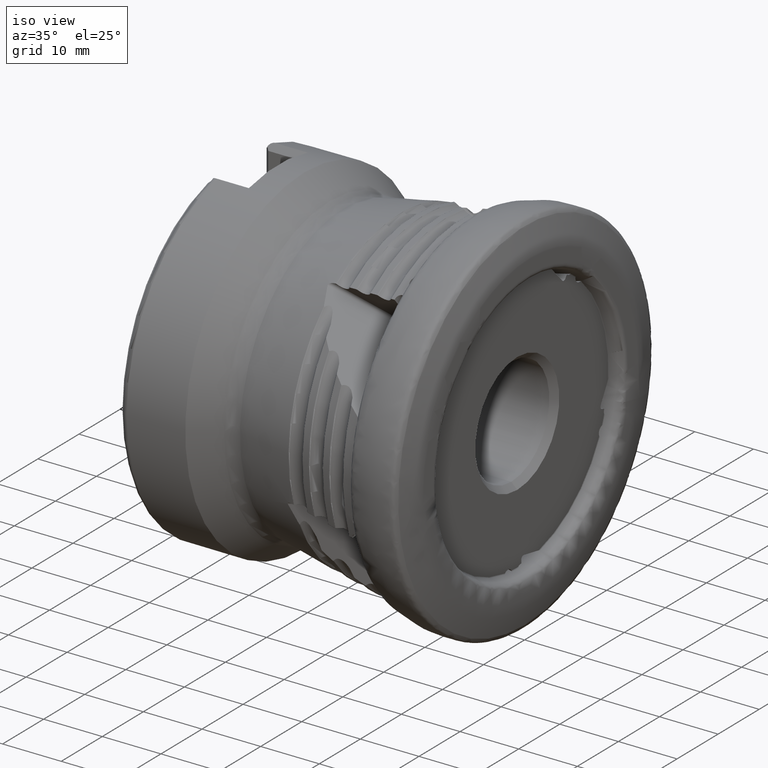
[diagram: clean part render]
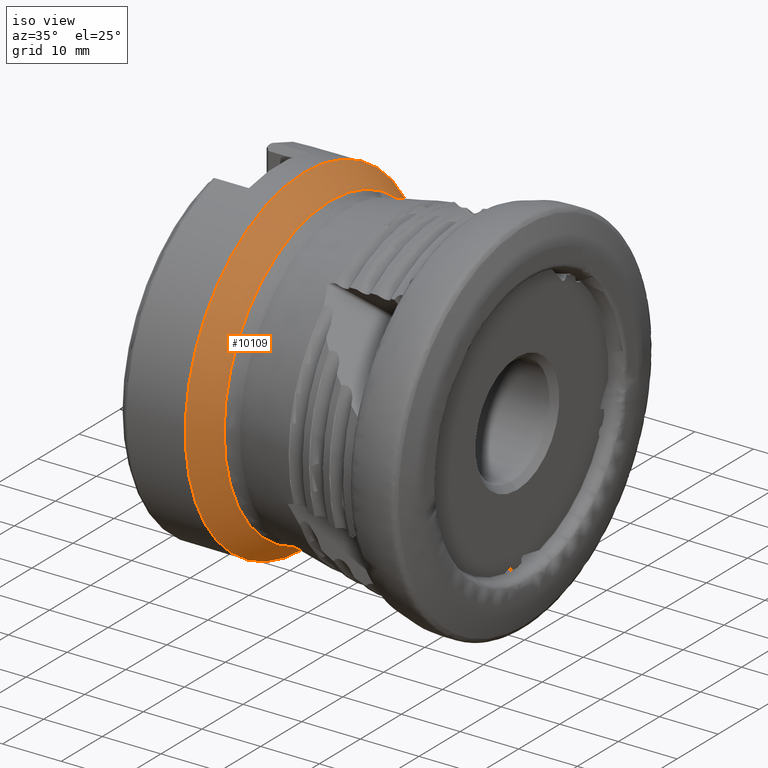
[diagram: same view with one face highlighted and labeled with its STEP entity id]
A machine part, iso view. The second image highlights one B-rep face of the part: STEP entity #10109.
In plain terms, the highlighted conical surface has half-angle 36.417 deg.
Its self-contained STEP definition (entity closure, byte-faithful):
#205 = ORIENTED_EDGE ( 'NONE', *, *, #8163, .F. ) ;
#544 = DIRECTION ( 'NONE',  ( 0.0000000000000000000, 0.0000000000000000000, -1.000000000000000000 ) ) ;
#1352 = CIRCLE ( 'NONE', #7913, 28.99999999999999300 ) ;
#1621 = EDGE_LOOP ( 'NONE', ( #4838 ) ) ;
#1695 = FACE_BOUND ( 'NONE', #2630, .T. ) ;
#2023 = CARTESIAN_POINT ( 'NONE',  ( -33.18403469254878500, 0.0000000000000000000, -25.77912350802459700 ) ) ;
#2630 = EDGE_LOOP ( 'NONE', ( #205 ) ) ;
#2863 = CARTESIAN_POINT ( 'NONE',  ( -37.54999999999999700, 0.0000000000000000000, -28.99999999999999300 ) ) ;
#3739 = DIRECTION ( 'NONE',  ( -1.000000000000000000, 0.0000000000000000000, 0.0000000000000000000 ) ) ;
#3745 = CARTESIAN_POINT ( 'NONE',  ( -37.54999999999999700, 0.0000000000000000000, 0.0000000000000000000 ) ) ;
#4556 = DIRECTION ( 'NONE',  ( 0.0000000000000000000, 0.0000000000000000000, -1.000000000000000000 ) ) ;
#4838 = ORIENTED_EDGE ( 'NONE', *, *, #8901, .T. ) ;
#5294 = VERTEX_POINT ( 'NONE', #2863 ) ;
#5407 = DIRECTION ( 'NONE',  ( 1.000000000000000000, -0.0000000000000000000, -0.0000000000000000000 ) ) ;
#6195 = CARTESIAN_POINT ( 'NONE',  ( -33.18403469254878500, 0.0000000000000000000, 0.0000000000000000000 ) ) ;
#6831 = AXIS2_PLACEMENT_3D ( 'NONE', #6195, #3739, #7024 ) ;
#7024 = DIRECTION ( 'NONE',  ( 0.0000000000000000000, 0.0000000000000000000, 1.000000000000000000 ) ) ;
#7232 = AXIS2_PLACEMENT_3D ( 'NONE', #10305, #5407, #544 ) ;
#7855 = CONICAL_SURFACE ( 'NONE', #6831, 25.77912350802459700, 0.6355979305626715500 ) ;
#7913 = AXIS2_PLACEMENT_3D ( 'NONE', #3745, #9445, #4556 ) ;
#8110 = FACE_OUTER_BOUND ( 'NONE', #1621, .T. ) ;
#8163 = EDGE_CURVE ( 'NONE', #9649, #9649, #9092, .T. ) ;
#8901 = EDGE_CURVE ( 'NONE', #5294, #5294, #1352, .T. ) ;
#9092 = CIRCLE ( 'NONE', #7232, 25.77912350802459700 ) ;
#9445 = DIRECTION ( 'NONE',  ( 1.000000000000000000, -0.0000000000000000000, -0.0000000000000000000 ) ) ;
#9649 = VERTEX_POINT ( 'NONE', #2023 ) ;
#10109 = ADVANCED_FACE ( 'NONE', ( #8110, #1695 ), #7855, .T. ) ;
#10305 = CARTESIAN_POINT ( 'NONE',  ( -33.18403469254878500, 0.0000000000000000000, 0.0000000000000000000 ) ) ;